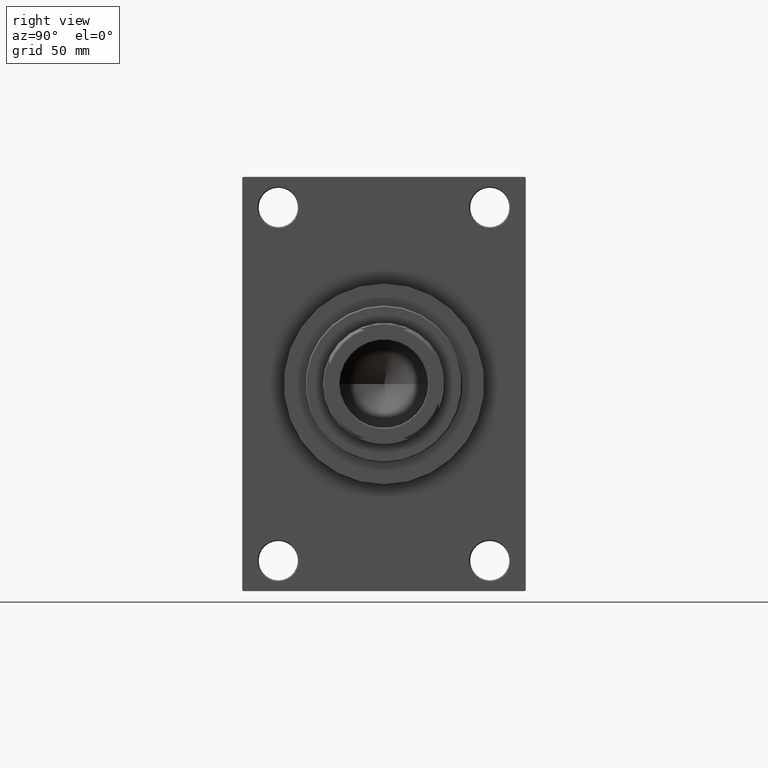
[diagram: clean part render]
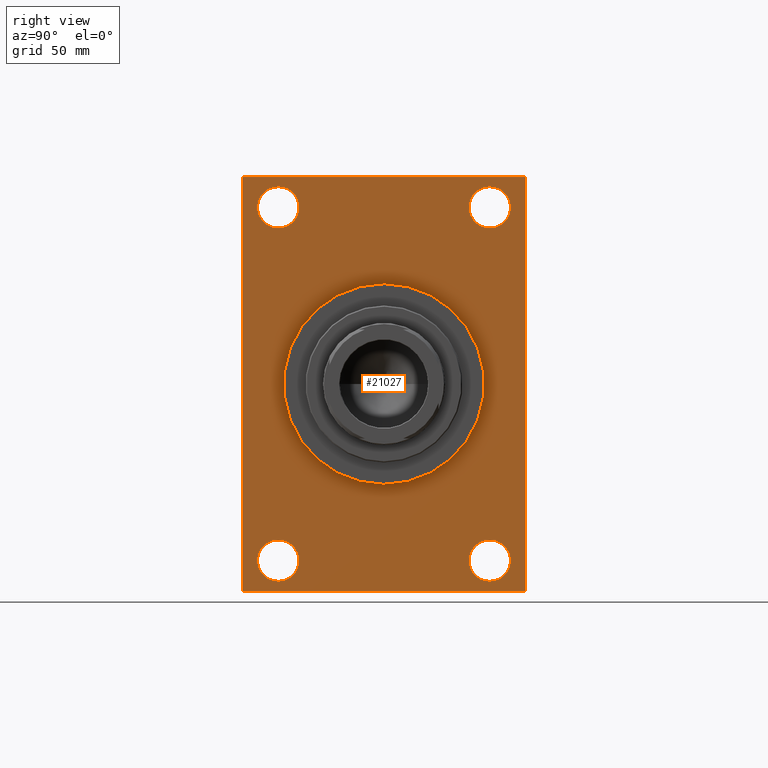
[diagram: same view with one face highlighted and labeled with its STEP entity id]
A machine part, right view. The second image highlights one B-rep face of the part: STEP entity #21027.
In plain terms, the highlighted planar face has unit normal (-1, 0, 0).
Its self-contained STEP definition (entity closure, byte-faithful):
#36 = ORIENTED_EDGE ( 'NONE', *, *, #3801, .T. ) ;
#587 = AXIS2_PLACEMENT_3D ( 'NONE', #12633, #24207, #42320 ) ;
#654 = VERTEX_POINT ( 'NONE', #23042 ) ;
#970 = VERTEX_POINT ( 'NONE', #8821 ) ;
#1215 = CARTESIAN_POINT ( 'NONE',  ( 166.9999999999999716, 64.99999999999997158, 94.99999999999997158 ) ) ;
#1264 = ORIENTED_EDGE ( 'NONE', *, *, #27031, .T. ) ;
#1322 = VERTEX_POINT ( 'NONE', #34601 ) ;
#1635 = EDGE_CURVE ( 'NONE', #46326, #970, #13649, .T. ) ;
#1871 = ORIENTED_EDGE ( 'NONE', *, *, #37348, .F. ) ;
#1877 = FACE_BOUND ( 'NONE', #21392, .T. ) ;
#1913 = ORIENTED_EDGE ( 'NONE', *, *, #19439, .T. ) ;
#2267 = DIRECTION ( 'NONE',  ( 0.000000000000000000, 0.000000000000000000, 1.000000000000000000 ) ) ;
#2354 = PLANE ( 'NONE',  #34566 ) ;
#2550 = CARTESIAN_POINT ( 'NONE',  ( 166.9999999999999716, -48.50000000000000000, 90.50000000000001421 ) ) ;
#3194 = CARTESIAN_POINT ( 'NONE',  ( 166.9999999999999716, 64.50000000000000000, 94.99999999999997158 ) ) ;
#3291 = CARTESIAN_POINT ( 'NONE',  ( 166.9999999999999716, 48.50000000000000711, -81.00000000000001421 ) ) ;
#3393 = VERTEX_POINT ( 'NONE', #23450 ) ;
#3600 = VECTOR ( 'NONE', #10327, 999.9999999999998863 ) ;
#3801 = EDGE_CURVE ( 'NONE', #20078, #7659, #13711, .T. ) ;
#4140 = ORIENTED_EDGE ( 'NONE', *, *, #12205, .T. ) ;
#4160 = EDGE_LOOP ( 'NONE', ( #46222, #22878 ) ) ;
#4533 = VECTOR ( 'NONE', #14844, 1000.000000000000000 ) ;
#4970 = DIRECTION ( 'NONE',  ( 0.000000000000000000, -1.000000000000000000, 0.000000000000000000 ) ) ;
#5201 = VERTEX_POINT ( 'NONE', #29500 ) ;
#6351 = DIRECTION ( 'NONE',  ( -1.000000000000000000, 0.000000000000000000, -0.000000000000000000 ) ) ;
#6572 = DIRECTION ( 'NONE',  ( 0.000000000000000000, -0.7071067811865279218, 0.7071067811865671127 ) ) ;
#6785 = ORIENTED_EDGE ( 'NONE', *, *, #8619, .T. ) ;
#7185 = EDGE_CURVE ( 'NONE', #43548, #21688, #10688, .T. ) ;
#7659 = VERTEX_POINT ( 'NONE', #47361 ) ;
#8446 = CARTESIAN_POINT ( 'NONE',  ( 166.9999999999999716, 48.50000000000000711, 81.00000000000000000 ) ) ;
#8610 = LINE ( 'NONE', #16557, #29966 ) ;
#8619 = EDGE_CURVE ( 'NONE', #21688, #43548, #28409, .T. ) ;
#8818 = CARTESIAN_POINT ( 'NONE',  ( 166.9999999999999716, -64.50000000000008527, 94.99999999999997158 ) ) ;
#8821 = CARTESIAN_POINT ( 'NONE',  ( 166.9999999999999716, 48.50000000000000711, 90.50000000000001421 ) ) ;
#9065 = CIRCLE ( 'NONE', #587, 9.500000000000008882 ) ;
#9254 = LINE ( 'NONE', #38702, #28856 ) ;
#9921 = DIRECTION ( 'NONE',  ( -0.000000000000000000, 0.7071067811865573427, 0.7071067811865378028 ) ) ;
#10327 = DIRECTION ( 'NONE',  ( -0.000000000000000000, -0.7071067811865376918, -0.7071067811865574537 ) ) ;
#10339 = EDGE_CURVE ( 'NONE', #41681, #5201, #42051, .T. ) ;
#10688 = CIRCLE ( 'NONE', #21452, 9.500000000000008882 ) ;
#11401 = CARTESIAN_POINT ( 'NONE',  ( 166.9999999999999716, -48.49999999999999289, -81.00000000000001421 ) ) ;
#11773 = EDGE_LOOP ( 'NONE', ( #13227, #1264 ) ) ;
#11848 = LINE ( 'NONE', #1215, #29533 ) ;
#12205 = EDGE_CURVE ( 'NONE', #26743, #22667, #43606, .T. ) ;
#12633 = CARTESIAN_POINT ( 'NONE',  ( 166.9999999999999716, -48.50000000000000000, 81.00000000000000000 ) ) ;
#13029 = CARTESIAN_POINT ( 'NONE',  ( 166.9999999999999716, 0.000000000000000000, 0.000000000000000000 ) ) ;
#13221 = FACE_BOUND ( 'NONE', #11773, .T. ) ;
#13227 = ORIENTED_EDGE ( 'NONE', *, *, #1635, .T. ) ;
#13286 = DIRECTION ( 'NONE',  ( 0.000000000000000000, 0.000000000000000000, 1.000000000000000000 ) ) ;
#13535 = CARTESIAN_POINT ( 'NONE',  ( 166.9999999999999716, 64.99999999999998579, -94.50000000000002842 ) ) ;
#13649 = CIRCLE ( 'NONE', #17418, 9.500000000000008882 ) ;
#13711 = LINE ( 'NONE', #28427, #3600 ) ;
#14255 = ORIENTED_EDGE ( 'NONE', *, *, #31497, .F. ) ;
#14844 = DIRECTION ( 'NONE',  ( 0.000000000000000000, -1.000000000000000000, -1.067522139062650425E-16 ) ) ;
#15427 = EDGE_CURVE ( 'NONE', #46952, #654, #34492, .T. ) ;
#16089 = DIRECTION ( 'NONE',  ( -1.000000000000000000, 0.000000000000000000, -0.000000000000000000 ) ) ;
#16165 = CARTESIAN_POINT ( 'NONE',  ( 166.9999999999999716, -48.50000000000000000, 71.50000000000000000 ) ) ;
#16370 = FACE_BOUND ( 'NONE', #33557, .T. ) ;
#16557 = CARTESIAN_POINT ( 'NONE',  ( 166.9999999999999716, 64.99999999999997158, 94.99999999999997158 ) ) ;
#16735 = LINE ( 'NONE', #16975, #36689 ) ;
#16884 = AXIS2_PLACEMENT_3D ( 'NONE', #11401, #18405, #33597 ) ;
#16975 = CARTESIAN_POINT ( 'NONE',  ( 166.9999999999999716, 64.50000000000000000, 94.99999999999997158 ) ) ;
#17418 = AXIS2_PLACEMENT_3D ( 'NONE', #21161, #46760, #25019 ) ;
#18405 = DIRECTION ( 'NONE',  ( -1.000000000000000000, 0.000000000000000000, -0.000000000000000000 ) ) ;
#18460 = LINE ( 'NONE', #34142, #4533 ) ;
#19277 = DIRECTION ( 'NONE',  ( 1.000000000000000000, 0.000000000000000000, 0.000000000000000000 ) ) ;
#19439 = EDGE_CURVE ( 'NONE', #42280, #20078, #8610, .T. ) ;
#19671 = EDGE_CURVE ( 'NONE', #40189, #38285, #46605, .T. ) ;
#19744 = DIRECTION ( 'NONE',  ( 0.000000000000000000, 0.000000000000000000, -1.000000000000000000 ) ) ;
#20078 = VERTEX_POINT ( 'NONE', #8818 ) ;
#20346 = DIRECTION ( 'NONE',  ( 0.000000000000000000, 0.000000000000000000, -1.000000000000000000 ) ) ;
#20650 = CARTESIAN_POINT ( 'NONE',  ( 166.9999999999999716, -48.49999999999999289, -81.00000000000001421 ) ) ;
#20929 = FACE_BOUND ( 'NONE', #4160, .T. ) ;
#21027 = ADVANCED_FACE ( 'NONE', ( #1877, #46757, #20929, #13221, #16370, #35425 ), #2354, .F. ) ;
#21161 = CARTESIAN_POINT ( 'NONE',  ( 166.9999999999999716, 48.50000000000000711, 81.00000000000000000 ) ) ;
#21392 = EDGE_LOOP ( 'NONE', ( #44534, #4140 ) ) ;
#21452 = AXIS2_PLACEMENT_3D ( 'NONE', #20650, #16089, #27182 ) ;
#21688 = VERTEX_POINT ( 'NONE', #46360 ) ;
#22667 = VERTEX_POINT ( 'NONE', #16165 ) ;
#22878 = ORIENTED_EDGE ( 'NONE', *, *, #15427, .T. ) ;
#22927 = ORIENTED_EDGE ( 'NONE', *, *, #42156, .T. ) ;
#22931 = EDGE_CURVE ( 'NONE', #40189, #1322, #18460, .T. ) ;
#23042 = CARTESIAN_POINT ( 'NONE',  ( 166.9999999999999716, 48.50000000000000711, -90.50000000000002842 ) ) ;
#23450 = CARTESIAN_POINT ( 'NONE',  ( 166.9999999999999716, -65.00000000000001421, -94.50000000000008527 ) ) ;
#23553 = AXIS2_PLACEMENT_3D ( 'NONE', #23859, #19277, #19744 ) ;
#23859 = CARTESIAN_POINT ( 'NONE',  ( 166.9999999999999716, 0.000000000000000000, 0.000000000000000000 ) ) ;
#24125 = DIRECTION ( 'NONE',  ( 0.000000000000000000, 0.7071067811865474617, -0.7071067811865474617 ) ) ;
#24207 = DIRECTION ( 'NONE',  ( -1.000000000000000000, 0.000000000000000000, -0.000000000000000000 ) ) ;
#24556 = DIRECTION ( 'NONE',  ( -0.000000000000000000, 0.000000000000000000, 1.000000000000000000 ) ) ;
#24852 = CARTESIAN_POINT ( 'NONE',  ( 166.9999999999999716, 48.50000000000000711, -81.00000000000001421 ) ) ;
#25019 = DIRECTION ( 'NONE',  ( 0.000000000000000000, 0.000000000000000000, 1.000000000000000000 ) ) ;
#25210 = AXIS2_PLACEMENT_3D ( 'NONE', #24852, #39576, #13286 ) ;
#26299 = DIRECTION ( 'NONE',  ( -1.000000000000000000, 0.000000000000000000, -0.000000000000000000 ) ) ;
#26743 = VERTEX_POINT ( 'NONE', #2550 ) ;
#27031 = EDGE_CURVE ( 'NONE', #970, #46326, #36276, .T. ) ;
#27182 = DIRECTION ( 'NONE',  ( 0.000000000000000000, 0.000000000000000000, 1.000000000000000000 ) ) ;
#27844 = CARTESIAN_POINT ( 'NONE',  ( 166.9999999999999716, -48.50000000000000000, 81.00000000000000000 ) ) ;
#27932 = CARTESIAN_POINT ( 'NONE',  ( 166.9999999999999716, 0.000000000000000000, 0.000000000000000000 ) ) ;
#28301 = CARTESIAN_POINT ( 'NONE',  ( 166.9999999999999716, 48.50000000000000711, 71.50000000000000000 ) ) ;
#28409 = CIRCLE ( 'NONE', #16884, 9.500000000000008882 ) ;
#28427 = CARTESIAN_POINT ( 'NONE',  ( 166.9999999999999716, -65.00000000000001421, 94.50000000000002842 ) ) ;
#28711 = AXIS2_PLACEMENT_3D ( 'NONE', #13029, #31832, #39315 ) ;
#28856 = VECTOR ( 'NONE', #20346, 1000.000000000000000 ) ;
#29353 = DIRECTION ( 'NONE',  ( 0.000000000000000000, 0.000000000000000000, 1.000000000000000000 ) ) ;
#29500 = CARTESIAN_POINT ( 'NONE',  ( 166.9999999999999716, 5.633375276077824704E-15, -46.00000000000000000 ) ) ;
#29533 = VECTOR ( 'NONE', #33813, 1000.000000000000000 ) ;
#29966 = VECTOR ( 'NONE', #4970, 1000.000000000000000 ) ;
#30095 = CARTESIAN_POINT ( 'NONE',  ( 166.9999999999999716, 48.50000000000000711, -71.50000000000001421 ) ) ;
#31356 = CIRCLE ( 'NONE', #43695, 9.500000000000008882 ) ;
#31497 = EDGE_CURVE ( 'NONE', #5201, #41681, #37952, .T. ) ;
#31632 = CARTESIAN_POINT ( 'NONE',  ( 166.9999999999999716, 0.000000000000000000, 46.00000000000000000 ) ) ;
#31832 = DIRECTION ( 'NONE',  ( 1.000000000000000000, 0.000000000000000000, 0.000000000000000000 ) ) ;
#32396 = ORIENTED_EDGE ( 'NONE', *, *, #38907, .T. ) ;
#32484 = ORIENTED_EDGE ( 'NONE', *, *, #35584, .T. ) ;
#32505 = DIRECTION ( 'NONE',  ( -1.000000000000000000, 0.000000000000000000, -0.000000000000000000 ) ) ;
#33557 = EDGE_LOOP ( 'NONE', ( #38313, #14255 ) ) ;
#33597 = DIRECTION ( 'NONE',  ( 0.000000000000000000, 0.000000000000000000, 1.000000000000000000 ) ) ;
#33813 = DIRECTION ( 'NONE',  ( 0.000000000000000000, 7.304098846218135653E-17, -1.000000000000000000 ) ) ;
#34095 = VERTEX_POINT ( 'NONE', #38251 ) ;
#34131 = VECTOR ( 'NONE', #24125, 1000.000000000000114 ) ;
#34142 = CARTESIAN_POINT ( 'NONE',  ( 166.9999999999999716, 64.99999999999998579, -95.00000000000001421 ) ) ;
#34492 = CIRCLE ( 'NONE', #25210, 9.500000000000008882 ) ;
#34505 = DIRECTION ( 'NONE',  ( 0.000000000000000000, 0.000000000000000000, 1.000000000000000000 ) ) ;
#34566 = AXIS2_PLACEMENT_3D ( 'NONE', #27932, #38570, #24556 ) ;
#34601 = CARTESIAN_POINT ( 'NONE',  ( 166.9999999999999716, -64.50000000000007105, -95.00000000000002842 ) ) ;
#34989 = CARTESIAN_POINT ( 'NONE',  ( 166.9999999999999716, -64.50000000000007105, -95.00000000000002842 ) ) ;
#35425 = FACE_OUTER_BOUND ( 'NONE', #45804, .T. ) ;
#35584 = EDGE_CURVE ( 'NONE', #3393, #1322, #38612, .T. ) ;
#36276 = CIRCLE ( 'NONE', #39370, 9.500000000000008882 ) ;
#36468 = EDGE_LOOP ( 'NONE', ( #45702, #6785 ) ) ;
#36689 = VECTOR ( 'NONE', #6572, 1000.000000000000000 ) ;
#36838 = ORIENTED_EDGE ( 'NONE', *, *, #19671, .T. ) ;
#36882 = ORIENTED_EDGE ( 'NONE', *, *, #22931, .F. ) ;
#37348 = EDGE_CURVE ( 'NONE', #34095, #38285, #11848, .T. ) ;
#37952 = CIRCLE ( 'NONE', #28711, 46.00000000000000000 ) ;
#38251 = CARTESIAN_POINT ( 'NONE',  ( 166.9999999999999716, 64.99999999999997158, 94.49999999999997158 ) ) ;
#38285 = VERTEX_POINT ( 'NONE', #39992 ) ;
#38313 = ORIENTED_EDGE ( 'NONE', *, *, #10339, .F. ) ;
#38570 = DIRECTION ( 'NONE',  ( -1.000000000000000000, 0.000000000000000000, -0.000000000000000000 ) ) ;
#38612 = LINE ( 'NONE', #34989, #34131 ) ;
#38702 = CARTESIAN_POINT ( 'NONE',  ( 166.9999999999999716, -65.00000000000001421, 94.99999999999997158 ) ) ;
#38907 = EDGE_CURVE ( 'NONE', #7659, #3393, #9254, .T. ) ;
#39315 = DIRECTION ( 'NONE',  ( 0.000000000000000000, 0.000000000000000000, -1.000000000000000000 ) ) ;
#39370 = AXIS2_PLACEMENT_3D ( 'NONE', #8446, #26299, #34505 ) ;
#39576 = DIRECTION ( 'NONE',  ( -1.000000000000000000, 0.000000000000000000, -0.000000000000000000 ) ) ;
#39992 = CARTESIAN_POINT ( 'NONE',  ( 166.9999999999999716, 64.99999999999998579, -94.50000000000002842 ) ) ;
#40189 = VERTEX_POINT ( 'NONE', #44170 ) ;
#41681 = VERTEX_POINT ( 'NONE', #31632 ) ;
#42051 = CIRCLE ( 'NONE', #23553, 46.00000000000000000 ) ;
#42156 = EDGE_CURVE ( 'NONE', #34095, #42280, #16735, .T. ) ;
#42280 = VERTEX_POINT ( 'NONE', #3194 ) ;
#42320 = DIRECTION ( 'NONE',  ( 0.000000000000000000, 0.000000000000000000, 1.000000000000000000 ) ) ;
#43473 = EDGE_CURVE ( 'NONE', #654, #46952, #31356, .T. ) ;
#43548 = VERTEX_POINT ( 'NONE', #44809 ) ;
#43606 = CIRCLE ( 'NONE', #44365, 9.500000000000008882 ) ;
#43695 = AXIS2_PLACEMENT_3D ( 'NONE', #3291, #32505, #29353 ) ;
#44170 = CARTESIAN_POINT ( 'NONE',  ( 166.9999999999999716, 64.49999999999998579, -95.00000000000001421 ) ) ;
#44365 = AXIS2_PLACEMENT_3D ( 'NONE', #27844, #6351, #2267 ) ;
#44534 = ORIENTED_EDGE ( 'NONE', *, *, #45624, .T. ) ;
#44809 = CARTESIAN_POINT ( 'NONE',  ( 166.9999999999999716, -48.49999999999999289, -90.50000000000002842 ) ) ;
#45624 = EDGE_CURVE ( 'NONE', #22667, #26743, #9065, .T. ) ;
#45702 = ORIENTED_EDGE ( 'NONE', *, *, #7185, .T. ) ;
#45804 = EDGE_LOOP ( 'NONE', ( #32396, #32484, #36882, #36838, #1871, #22927, #1913, #36 ) ) ;
#46071 = VECTOR ( 'NONE', #9921, 1000.000000000000000 ) ;
#46222 = ORIENTED_EDGE ( 'NONE', *, *, #43473, .T. ) ;
#46326 = VERTEX_POINT ( 'NONE', #28301 ) ;
#46360 = CARTESIAN_POINT ( 'NONE',  ( 166.9999999999999716, -48.49999999999999289, -71.50000000000001421 ) ) ;
#46605 = LINE ( 'NONE', #13535, #46071 ) ;
#46757 = FACE_BOUND ( 'NONE', #36468, .T. ) ;
#46760 = DIRECTION ( 'NONE',  ( -1.000000000000000000, 0.000000000000000000, -0.000000000000000000 ) ) ;
#46952 = VERTEX_POINT ( 'NONE', #30095 ) ;
#47361 = CARTESIAN_POINT ( 'NONE',  ( 166.9999999999999716, -65.00000000000001421, 94.50000000000002842 ) ) ;